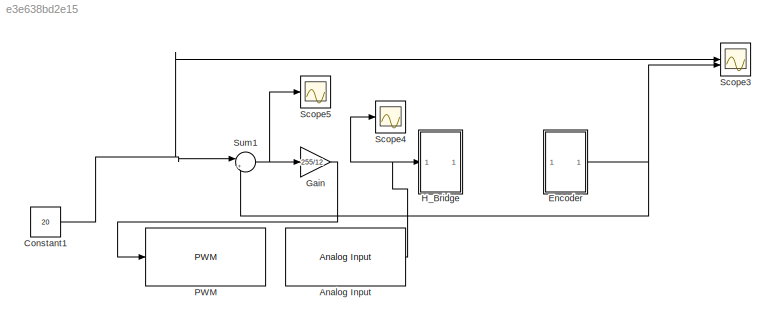
MODEL slx_e3e638bd2e15
KIND model
CONFIG AbsTol = auto
CONFIG EnableMultiTasking = on
CONFIG FixedStep = 0.005
CONFIG MaxStep = auto
CONFIG MinStep = auto
CONFIG RelTol = 1e-3
CONFIG SampleTimeConstraint = Unconstrained
CONFIG SolverName = FixedStepAuto
CONFIG StartTime = 0.0
CONFIG StopTime = inf
BLOCK [Reference] Analog Input  REF=arduinolib/Analog Input
  SourceBlock = arduinolib/Analog Input
  SourceType = Arduino Analog Input
BLOCK [Constant] Constant1
  Value = 20
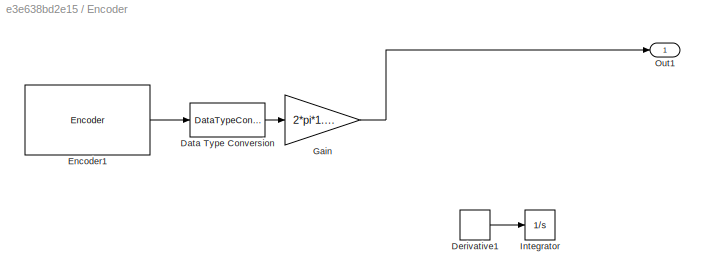
BLOCK [SubSystem] Encoder
BLOCK [DataTypeConversion] Encoder/Data Type Conversion
  RndMeth = Floor
  SaturateOnIntegerOverflow = off
BLOCK [Derivative] Encoder/Derivative1
BLOCK [Reference] Encoder/Encoder1  REF=arduinosensorlib/Encoder
  SourceBlock = arduinosensorlib/Encoder
  SourceType = Arduino Rotary Encoder
BLOCK [Gain] Encoder/Gain
  Gain = 2*pi*1.1/(370*4)
  OutDataTypeStr = double
BLOCK [Integrator] Encoder/Integrator
BLOCK [Outport] Encoder/Out1
BLOCK [Gain] Gain
  Gain = 255/12
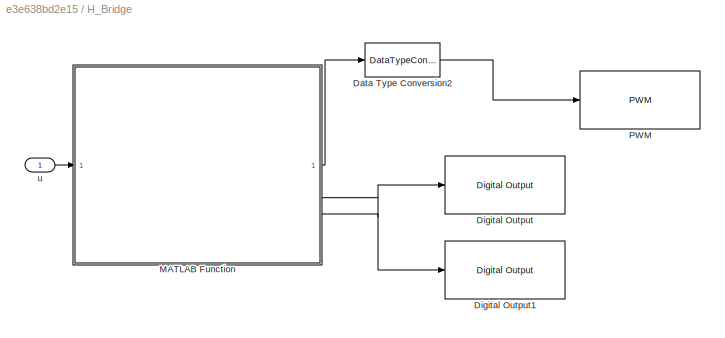
BLOCK [SubSystem] H_Bridge
BLOCK [DataTypeConversion] H_Bridge/Data Type Conversion2
  RndMeth = Floor
  SaturateOnIntegerOverflow = off
BLOCK [Reference] H_Bridge/Digital Output  REF=arduinolib/Digital Output
  SourceBlock = arduinolib/Digital Output
  SourceType = Arduino Digital Output
BLOCK [Reference] H_Bridge/Digital Output1  REF=arduinolib/Digital Output
  SourceBlock = arduinolib/Digital Output
  SourceType = Arduino Digital Output
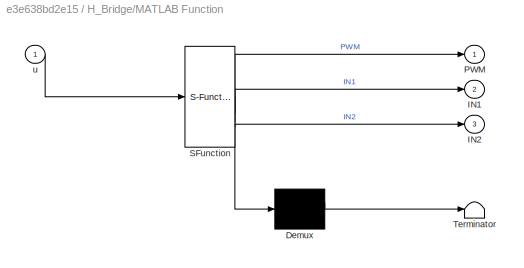
BLOCK [SubSystem] H_Bridge/MATLAB Function
  ErrorFcn = Stateflow.Translate.translate
  PermitHierarchicalResolution = ExplicitOnly
  SFBlockType = MATLAB Function
  TreatAsAtomicUnit = on
BLOCK [Demux] H_Bridge/MATLAB Function/ Demux 
  Outputs = 1
BLOCK [S-Function] H_Bridge/MATLAB Function/ SFunction 
  EnableBusSupport = on
  FunctionName = sf_sfun
  PortCounts = [1 4]
  SFcnIsStateOwnerBlock = off
  SFunctionDeploymentMode = off
  Tag = Stateflow S-Function 2
BLOCK [Terminator] H_Bridge/MATLAB Function/ Terminator 
BLOCK [Outport] H_Bridge/MATLAB Function/IN1
  Port = 2
BLOCK [Outport] H_Bridge/MATLAB Function/IN2
  Port = 3
BLOCK [Outport] H_Bridge/MATLAB Function/PWM
BLOCK [Inport] H_Bridge/MATLAB Function/u
BLOCK [Reference] H_Bridge/PWM  REF=arduinolib/PWM
  SourceBlock = arduinolib/PWM
  SourceType = Arduino PWM
BLOCK [Inport] H_Bridge/u
BLOCK [Reference] PWM  REF=arduinolib/PWM
  SourceBlock = arduinolib/PWM
  SourceType = Arduino PWM
BLOCK [Scope] Scope3
  Floating = off
  NumInputPorts = 2
  ScopeSpecificationString = Simulink.scopes.TimeScopeBlockCfg('CurrentConfiguration', extmgr.ConfigurationSet(extmgr.Configuration('Core','General UI',true),extmgr.Configuration('Core','Source UI',true),extmgr.Configuration('Sources','WiredSimulink',true,'DataLoggingVariableName','ScopeData1'),extmgr.Configuration('Visuals','Time Domain',true,'SerializedDisplays',{struct('MinYLimReal','-2.71615','MaxYLimReal','24.44536','YLa...<+1401ch>
BLOCK [Scope] Scope4
  Floating = off
  NumInputPorts = 1
  ScopeSpecificationString = Simulink.scopes.TimeScopeBlockCfg('CurrentConfiguration', extmgr.ConfigurationSet(extmgr.Configuration('Core','General UI',true),extmgr.Configuration('Core','Source UI',true),extmgr.Configuration('Sources','WiredSimulink',true,'DataLoggingVariableName','ScopeData1'),extmgr.Configuration('Visuals','Time Domain',true,'SerializedDisplays',{struct('MinYLimReal','-86.22649','MaxYLimReal','292.91405','Y...<+1415ch>
BLOCK [Scope] Scope5
  Floating = off
  NumInputPorts = 1
  ScopeSpecificationString = Simulink.scopes.TimeScopeBlockCfg('CurrentConfiguration', extmgr.ConfigurationSet(extmgr.Configuration('Core','General UI',true),extmgr.Configuration('Core','Source UI',true),extmgr.Configuration('Sources','WiredSimulink',true,'DataLoggingVariableName','ScopeData2'),extmgr.Configuration('Visuals','Time Domain',true,'SerializedDisplays',{struct('MinYLimReal','-3.45767','MaxYLimReal','22.60641','YLa...<+1367ch>
BLOCK [Sum] Sum1
  Inputs = |+-
NET Analog Input:1 -> H_Bridge:1, Scope4:1
NET Constant1:1 -> Scope3:1, Sum1:1
LINE Encoder/Data Type Conversion:1 -> Encoder/Gain:1
LINE Encoder/Derivative1:1 -> Encoder/Integrator:1
LINE Encoder/Encoder1:1 -> Encoder/Data Type Conversion:1
LINE Encoder/Gain:1 -> Encoder/Out1:1
NET Encoder:1 -> Scope3:2, Sum1:2
LINE Gain:1 -> PWM:1
LINE H_Bridge/Data Type Conversion2:1 -> H_Bridge/PWM:1
LINE H_Bridge/MATLAB Function:1 -> H_Bridge/Data Type Conversion2:1
LINE H_Bridge/MATLAB Function:2 -> H_Bridge/Digital Output:1
LINE H_Bridge/MATLAB Function:3 -> H_Bridge/Digital Output1:1
LINE H_Bridge/u:1 -> H_Bridge/MATLAB Function:1
NET Sum1:1 -> Gain:1, Scope5:1
note: NET lines group one-source signal fan-out (src -> all destinations, sorted); 1:1 wires keep LINE
CHART H_Bridge/MATLAB Function states=1 transitions=1
  STATE_LABEL 'eML_blk_kernel()'
  STATE_LABEL 'SCRIPT:\nfunction [PWM,IN1,IN2]=fcn1(u)\nPWM= abs(u);\nif u<0\nIN1=1; IN2=0;\nelseif u>0\nIN1=0; IN2=1;\nelse\nIN1=0; IN2=0;\nend'
CHART  states=0 transitions=0
